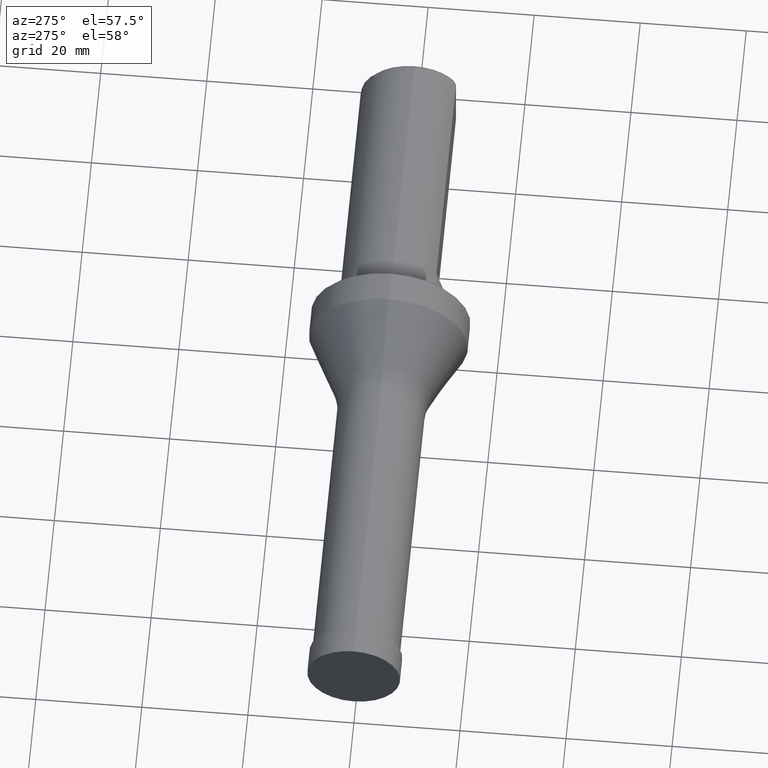
[diagram: clean part render]
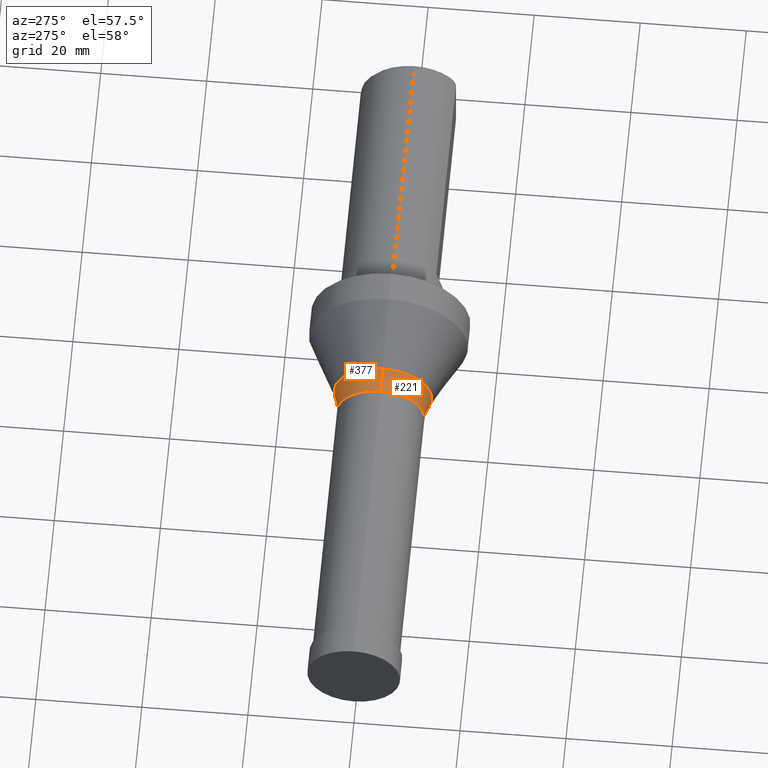
[diagram: same view with one multi-face feature highlighted, each face labeled with its STEP entity id]
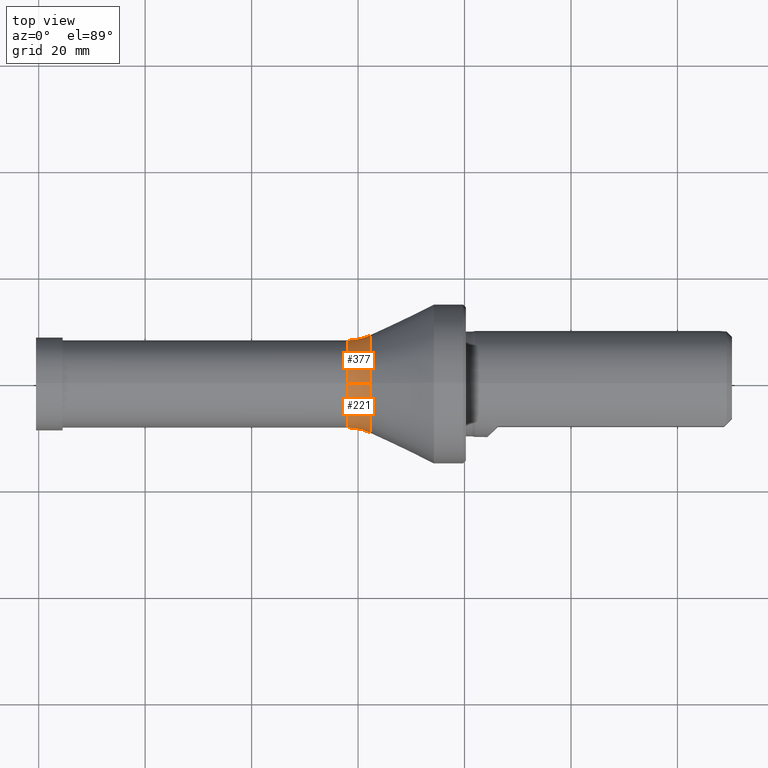
[diagram: same view with one multi-face feature highlighted, each face labeled with its STEP entity id]
A machine part, auxiliary view. The highlighted faces form ONE feature: a constant-radius fillet chain: 2 tangent blend faces with common blend radius 10 mm. The faces share edges in the B-rep.
A second angle (top view) of the same feature is appended — it is thin or edge-on in the first view.
Their STEP definitions:
[1] entity #377 (Torus):
#6 = DIRECTION ( 'NONE',  ( 0.0000000000000000000, -1.000000000000000000, 0.0000000000000000000 ) ) ;
#38 = VERTEX_POINT ( 'NONE', #933 ) ;
#154 = VERTEX_POINT ( 'NONE', #409 ) ;
#161 = DIRECTION ( 'NONE',  ( -0.0000000000000000000, 1.000000000000000000, 1.224646799147353200E-016 ) ) ;
#170 = DIRECTION ( 'NONE',  ( 0.0000000000000000000, 0.0000000000000000000, 1.000000000000000000 ) ) ;
#174 = DIRECTION ( 'NONE',  ( -1.000000000000000000, -0.0000000000000000000, -0.0000000000000000000 ) ) ;
#230 = ORIENTED_EDGE ( 'NONE', *, *, #278, .T. ) ;
#246 = VERTEX_POINT ( 'NONE', #1155 ) ;
#252 = EDGE_LOOP ( 'NONE', ( #258, #487, #230, #1024 ) ) ;
#258 = ORIENTED_EDGE ( 'NONE', *, *, #1035, .F. ) ;
#278 = EDGE_CURVE ( 'NONE', #154, #1002, #662, .T. ) ;
#295 = DIRECTION ( 'NONE',  ( -1.000000000000000000, -0.0000000000000000000, -0.0000000000000000000 ) ) ;
#303 = CARTESIAN_POINT ( 'NONE',  ( 62.35071162990642100, 0.0000000000000000000, 0.0000000000000000000 ) ) ;
#340 = EDGE_CURVE ( 'NONE', #154, #38, #879, .T. ) ;
#348 = AXIS2_PLACEMENT_3D ( 'NONE', #303, #295, #874 ) ;
#377 = ADVANCED_FACE ( 'NONE', ( #999 ), #557, .F. ) ;
#387 = CARTESIAN_POINT ( 'NONE',  ( 57.99799999999999000, 0.0000000000000000000, 0.0000000000000000000 ) ) ;
#409 = CARTESIAN_POINT ( 'NONE',  ( 57.99799999999999000, 0.0000000000000000000, 8.250000000000000000 ) ) ;
#415 = DIRECTION ( 'NONE',  ( 0.0000000000000000000, 0.0000000000000000000, -1.000000000000000000 ) ) ;
#448 = DIRECTION ( 'NONE',  ( -1.000000000000000000, -0.0000000000000000000, -0.0000000000000000000 ) ) ;
#466 = CIRCLE ( 'NONE', #348, 9.247005972073663900 ) ;
#487 = ORIENTED_EDGE ( 'NONE', *, *, #340, .F. ) ;
#489 = EDGE_CURVE ( 'NONE', #1002, #246, #466, .T. ) ;
#533 = AXIS2_PLACEMENT_3D ( 'NONE', #949, #6, #415 ) ;
#557 = TOROIDAL_SURFACE ( 'NONE', #830, 18.25000000000000400, 10.00000000000000000 ) ;
#648 = CARTESIAN_POINT ( 'NONE',  ( 62.35071162990642100, 0.0000000000000000000, 9.247005972073663900 ) ) ;
#662 = CIRCLE ( 'NONE', #533, 10.00000000000000000 ) ;
#669 = AXIS2_PLACEMENT_3D ( 'NONE', #768, #161, #1213 ) ;
#671 = DIRECTION ( 'NONE',  ( 0.0000000000000000000, 0.0000000000000000000, 1.000000000000000000 ) ) ;
#700 = AXIS2_PLACEMENT_3D ( 'NONE', #1117, #448, #170 ) ;
#768 = CARTESIAN_POINT ( 'NONE',  ( 57.99799999999999000, 2.234980408443920000E-015, -18.25000000000000400 ) ) ;
#830 = AXIS2_PLACEMENT_3D ( 'NONE', #387, #174, #671 ) ;
#874 = DIRECTION ( 'NONE',  ( 0.0000000000000000000, 0.0000000000000000000, 1.000000000000000000 ) ) ;
#879 = CIRCLE ( 'NONE', #700, 8.250000000000000000 ) ;
#894 = CIRCLE ( 'NONE', #669, 10.00000000000000000 ) ;
#933 = CARTESIAN_POINT ( 'NONE',  ( 57.99799999999999000, 1.010333609296566500E-015, -8.250000000000000000 ) ) ;
#949 = CARTESIAN_POINT ( 'NONE',  ( 57.99799999999999000, 0.0000000000000000000, 18.25000000000000400 ) ) ;
#999 = FACE_OUTER_BOUND ( 'NONE', #252, .T. ) ;
#1002 = VERTEX_POINT ( 'NONE', #648 ) ;
#1024 = ORIENTED_EDGE ( 'NONE', *, *, #489, .T. ) ;
#1035 = EDGE_CURVE ( 'NONE', #38, #246, #894, .T. ) ;
#1117 = CARTESIAN_POINT ( 'NONE',  ( 57.99799999999999000, 0.0000000000000000000, 0.0000000000000000000 ) ) ;
#1155 = CARTESIAN_POINT ( 'NONE',  ( 62.35071162990642100, 1.132431626539647100E-015, -9.247005972073663900 ) ) ;
#1213 = DIRECTION ( 'NONE',  ( 0.0000000000000000000, -1.224646799147353200E-016, 1.000000000000000000 ) ) ;
[2] entity #221 (Torus):
#6 = DIRECTION ( 'NONE',  ( 0.0000000000000000000, -1.000000000000000000, 0.0000000000000000000 ) ) ;
#38 = VERTEX_POINT ( 'NONE', #933 ) ;
#63 = AXIS2_PLACEMENT_3D ( 'NONE', #799, #1044, #967 ) ;
#77 = TOROIDAL_SURFACE ( 'NONE', #243, 18.25000000000000400, 10.00000000000000000 ) ;
#154 = VERTEX_POINT ( 'NONE', #409 ) ;
#161 = DIRECTION ( 'NONE',  ( -0.0000000000000000000, 1.000000000000000000, 1.224646799147353200E-016 ) ) ;
#221 = ADVANCED_FACE ( 'NONE', ( #481 ), #77, .F. ) ;
#243 = AXIS2_PLACEMENT_3D ( 'NONE', #447, #353, #1232 ) ;
#246 = VERTEX_POINT ( 'NONE', #1155 ) ;
#254 = EDGE_CURVE ( 'NONE', #38, #154, #531, .T. ) ;
#278 = EDGE_CURVE ( 'NONE', #154, #1002, #662, .T. ) ;
#290 = CIRCLE ( 'NONE', #63, 9.247005972073663900 ) ;
#294 = ORIENTED_EDGE ( 'NONE', *, *, #254, .F. ) ;
#353 = DIRECTION ( 'NONE',  ( -1.000000000000000000, -0.0000000000000000000, -0.0000000000000000000 ) ) ;
#409 = CARTESIAN_POINT ( 'NONE',  ( 57.99799999999999000, 0.0000000000000000000, 8.250000000000000000 ) ) ;
#415 = DIRECTION ( 'NONE',  ( 0.0000000000000000000, 0.0000000000000000000, -1.000000000000000000 ) ) ;
#423 = DIRECTION ( 'NONE',  ( -1.000000000000000000, -0.0000000000000000000, -0.0000000000000000000 ) ) ;
#447 = CARTESIAN_POINT ( 'NONE',  ( 57.99799999999999000, 0.0000000000000000000, 0.0000000000000000000 ) ) ;
#481 = FACE_OUTER_BOUND ( 'NONE', #589, .T. ) ;
#531 = CIRCLE ( 'NONE', #889, 8.250000000000000000 ) ;
#533 = AXIS2_PLACEMENT_3D ( 'NONE', #949, #6, #415 ) ;
#549 = ORIENTED_EDGE ( 'NONE', *, *, #670, .T. ) ;
#589 = EDGE_LOOP ( 'NONE', ( #294, #873, #549, #1006 ) ) ;
#595 = DIRECTION ( 'NONE',  ( 0.0000000000000000000, 0.0000000000000000000, 1.000000000000000000 ) ) ;
#648 = CARTESIAN_POINT ( 'NONE',  ( 62.35071162990642100, 0.0000000000000000000, 9.247005972073663900 ) ) ;
#662 = CIRCLE ( 'NONE', #533, 10.00000000000000000 ) ;
#669 = AXIS2_PLACEMENT_3D ( 'NONE', #768, #161, #1213 ) ;
#670 = EDGE_CURVE ( 'NONE', #246, #1002, #290, .T. ) ;
#768 = CARTESIAN_POINT ( 'NONE',  ( 57.99799999999999000, 2.234980408443920000E-015, -18.25000000000000400 ) ) ;
#799 = CARTESIAN_POINT ( 'NONE',  ( 62.35071162990642100, 0.0000000000000000000, 0.0000000000000000000 ) ) ;
#873 = ORIENTED_EDGE ( 'NONE', *, *, #1035, .T. ) ;
#889 = AXIS2_PLACEMENT_3D ( 'NONE', #1182, #423, #595 ) ;
#894 = CIRCLE ( 'NONE', #669, 10.00000000000000000 ) ;
#933 = CARTESIAN_POINT ( 'NONE',  ( 57.99799999999999000, 1.010333609296566500E-015, -8.250000000000000000 ) ) ;
#949 = CARTESIAN_POINT ( 'NONE',  ( 57.99799999999999000, 0.0000000000000000000, 18.25000000000000400 ) ) ;
#967 = DIRECTION ( 'NONE',  ( 0.0000000000000000000, 0.0000000000000000000, 1.000000000000000000 ) ) ;
#1002 = VERTEX_POINT ( 'NONE', #648 ) ;
#1006 = ORIENTED_EDGE ( 'NONE', *, *, #278, .F. ) ;
#1035 = EDGE_CURVE ( 'NONE', #38, #246, #894, .T. ) ;
#1044 = DIRECTION ( 'NONE',  ( -1.000000000000000000, -0.0000000000000000000, -0.0000000000000000000 ) ) ;
#1155 = CARTESIAN_POINT ( 'NONE',  ( 62.35071162990642100, 1.132431626539647100E-015, -9.247005972073663900 ) ) ;
#1182 = CARTESIAN_POINT ( 'NONE',  ( 57.99799999999999000, 0.0000000000000000000, 0.0000000000000000000 ) ) ;
#1213 = DIRECTION ( 'NONE',  ( 0.0000000000000000000, -1.224646799147353200E-016, 1.000000000000000000 ) ) ;
#1232 = DIRECTION ( 'NONE',  ( 0.0000000000000000000, 0.0000000000000000000, 1.000000000000000000 ) ) ;